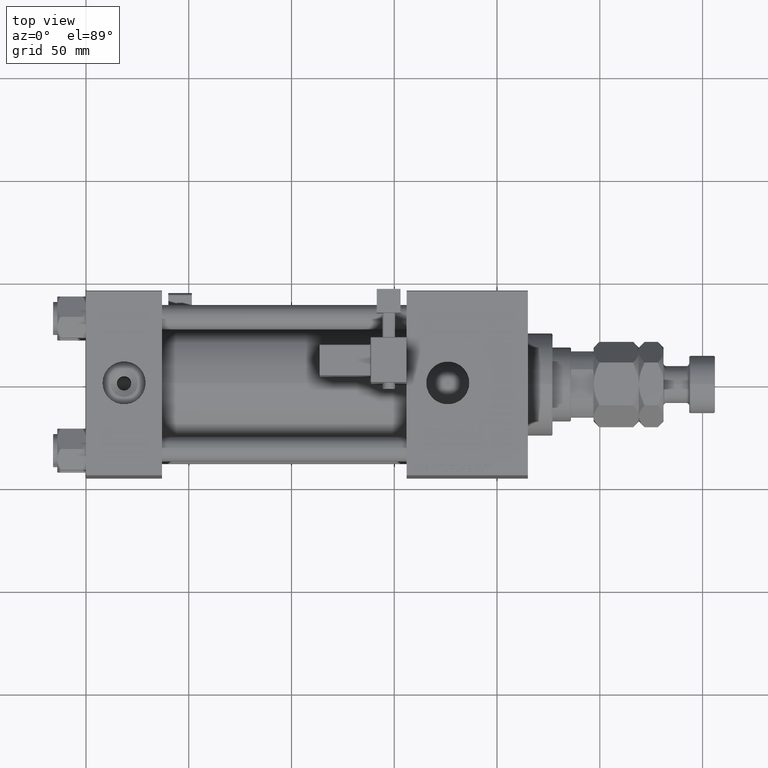
[diagram: clean part render]
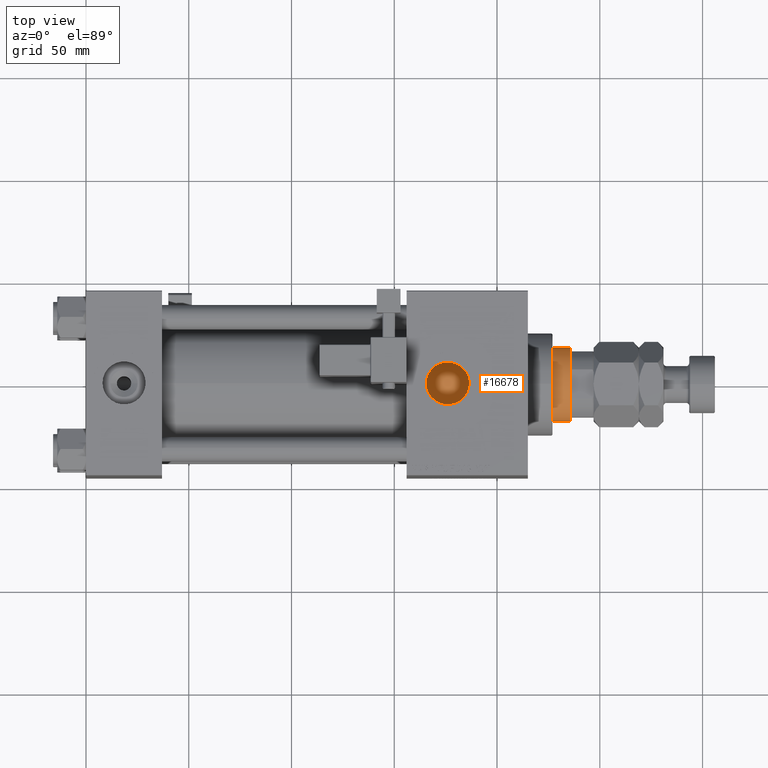
[diagram: same view with one face highlighted and labeled with its STEP entity id]
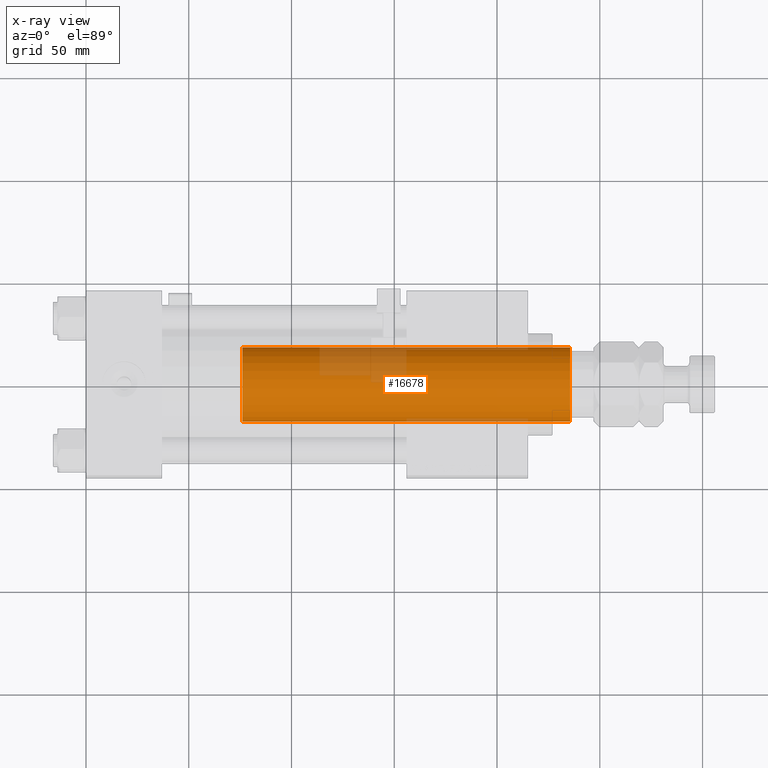
[diagram: x-ray of the same camera — body ghosted, the highlighted face saturated]
A machine part, top view. The second image highlights one B-rep face of the part: STEP entity #16678.
The next image is the same camera in x-ray: the body ghosted, the highlighted face saturated — about 14% of this face is hidden behind the body in this view.
In plain terms, the highlighted cylindrical surface (partial cylindrical patch) has radius 18 mm, axis along (-1, 0, 0).
Its self-contained STEP definition (entity closure, byte-faithful):
#1830 = EDGE_CURVE ( 'NONE', #16605, #32750, #51967, .T. ) ;
#2244 = ORIENTED_EDGE ( 'NONE', *, *, #17796, .T. ) ;
#4484 = AXIS2_PLACEMENT_3D ( 'NONE', #33420, #41380, #29859 ) ;
#5166 = CIRCLE ( 'NONE', #41015, 18.00000000000000000 ) ;
#5549 = DIRECTION ( 'NONE',  ( 1.000000000000000000, 0.000000000000000000, 0.000000000000000000 ) ) ;
#7367 = EDGE_LOOP ( 'NONE', ( #34315, #38359, #30018, #2244 ) ) ;
#7493 = VERTEX_POINT ( 'NONE', #19286 ) ;
#9290 = LINE ( 'NONE', #22164, #15292 ) ;
#10031 = CARTESIAN_POINT ( 'NONE',  ( 0.000000000000000000, 0.000000000000000000, 199.0000000000000000 ) ) ;
#14113 = EDGE_CURVE ( 'NONE', #16605, #7493, #39467, .T. ) ;
#15292 = VECTOR ( 'NONE', #45256, 1000.000000000000000 ) ;
#16605 = VERTEX_POINT ( 'NONE', #45651 ) ;
#16678 = ADVANCED_FACE ( 'NONE', ( #26738 ), #38498, .T. ) ;
#17796 = EDGE_CURVE ( 'NONE', #34377, #32750, #5166, .T. ) ;
#18712 = DIRECTION ( 'NONE',  ( 0.000000000000000000, 0.000000000000000000, 1.000000000000000000 ) ) ;
#19286 = CARTESIAN_POINT ( 'NONE',  ( -18.00000000000000000, 0.000000000000000000, 198.5000000000000284 ) ) ;
#22164 = CARTESIAN_POINT ( 'NONE',  ( -18.00000000000000000, 0.000000000000000000, 199.0000000000000000 ) ) ;
#22258 = CARTESIAN_POINT ( 'NONE',  ( 0.000000000000000000, 0.000000000000000000, 39.00000000000000000 ) ) ;
#22660 = CARTESIAN_POINT ( 'NONE',  ( 18.00000000000000000, 2.204364238465235428E-15, 199.0000000000000000 ) ) ;
#25921 = DIRECTION ( 'NONE',  ( -0.000000000000000000, -0.000000000000000000, -1.000000000000000000 ) ) ;
#26738 = FACE_OUTER_BOUND ( 'NONE', #7367, .T. ) ;
#29859 = DIRECTION ( 'NONE',  ( 1.000000000000000000, 0.000000000000000000, 0.000000000000000000 ) ) ;
#30018 = ORIENTED_EDGE ( 'NONE', *, *, #37325, .T. ) ;
#30932 = AXIS2_PLACEMENT_3D ( 'NONE', #10031, #25921, #43426 ) ;
#32750 = VERTEX_POINT ( 'NONE', #36896 ) ;
#33420 = CARTESIAN_POINT ( 'NONE',  ( 0.000000000000000000, 0.000000000000000000, 198.5000000000000284 ) ) ;
#34315 = ORIENTED_EDGE ( 'NONE', *, *, #1830, .F. ) ;
#34377 = VERTEX_POINT ( 'NONE', #51218 ) ;
#35802 = DIRECTION ( 'NONE',  ( -0.000000000000000000, -0.000000000000000000, -1.000000000000000000 ) ) ;
#36896 = CARTESIAN_POINT ( 'NONE',  ( 18.00000000000000000, 2.204364238465235428E-15, 39.00000000000000000 ) ) ;
#37325 = EDGE_CURVE ( 'NONE', #7493, #34377, #9290, .T. ) ;
#38359 = ORIENTED_EDGE ( 'NONE', *, *, #14113, .T. ) ;
#38498 = CYLINDRICAL_SURFACE ( 'NONE', #30932, 18.00000000000000000 ) ;
#39467 = CIRCLE ( 'NONE', #4484, 18.00000000000000000 ) ;
#41015 = AXIS2_PLACEMENT_3D ( 'NONE', #22258, #18712, #5549 ) ;
#41380 = DIRECTION ( 'NONE',  ( 0.000000000000000000, 0.000000000000000000, -1.000000000000000000 ) ) ;
#43426 = DIRECTION ( 'NONE',  ( -1.000000000000000000, 0.000000000000000000, 0.000000000000000000 ) ) ;
#45256 = DIRECTION ( 'NONE',  ( -0.000000000000000000, -0.000000000000000000, -1.000000000000000000 ) ) ;
#45651 = CARTESIAN_POINT ( 'NONE',  ( 18.00000000000000000, 2.204364238465235428E-15, 198.5000000000000284 ) ) ;
#51218 = CARTESIAN_POINT ( 'NONE',  ( -18.00000000000000000, 0.000000000000000000, 39.00000000000000000 ) ) ;
#51967 = LINE ( 'NONE', #22660, #53968 ) ;
#53968 = VECTOR ( 'NONE', #35802, 1000.000000000000000 ) ;